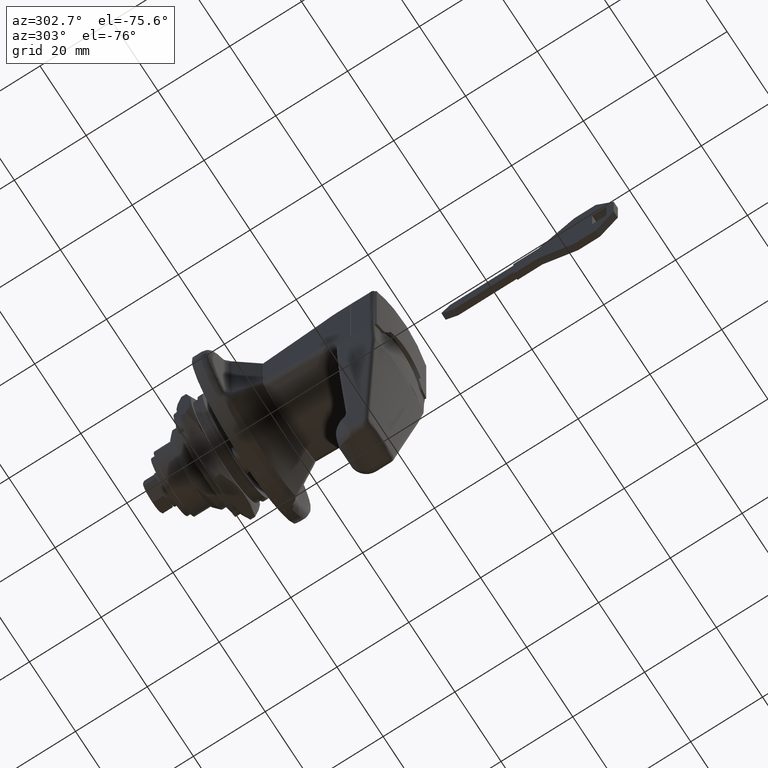
[diagram: clean part render]
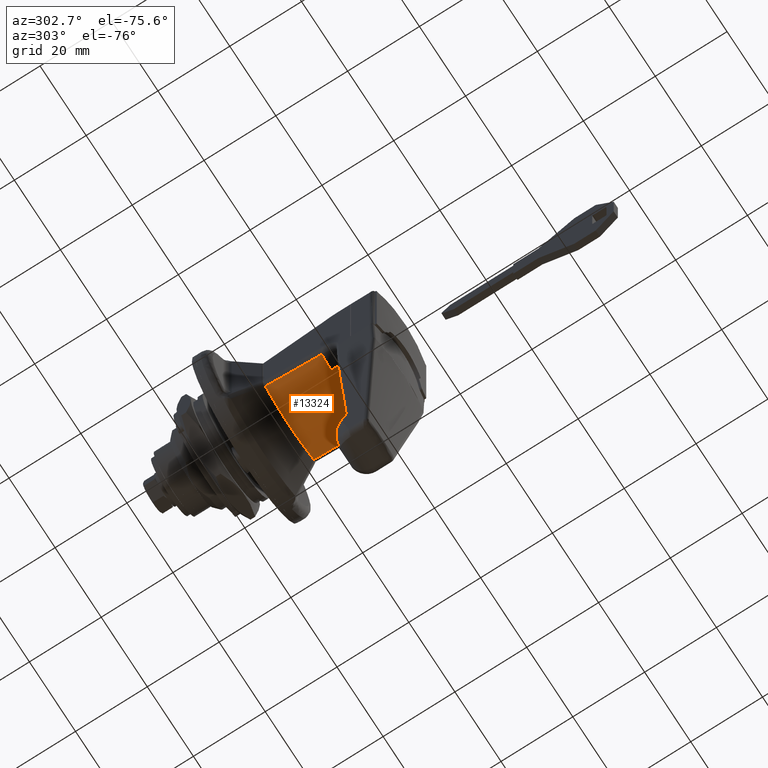
[diagram: same view with one face highlighted and labeled with its STEP entity id]
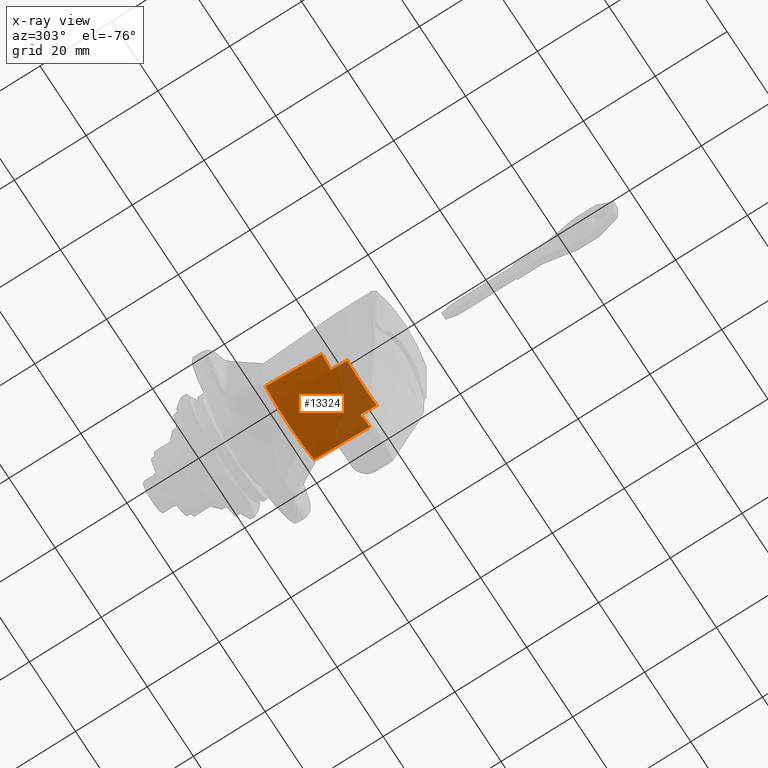
[diagram: x-ray of the same camera — body ghosted, the highlighted face saturated]
A machine part, auxiliary view. The second image highlights one B-rep face of the part: STEP entity #13324.
The next image is the same camera in x-ray: the body ghosted, the highlighted face saturated — about 26% of this face is hidden behind the body in this view.
In plain terms, the highlighted face is a freeform B-spline surface patch.
Its self-contained STEP definition (entity closure, byte-faithful):
#6979=CARTESIAN_POINT('',(-28.129862603614249,10.442400157029640,-12.346453327102640));
#6980=VERTEX_POINT('',#6979);
#7062=CARTESIAN_POINT('',(-12.500000000000000,10.546220663594280,-9.993446669665621));
#7063=VERTEX_POINT('',#7062);
#7086=CARTESIAN_POINT('',(-28.129862603614249,10.442400157029640,-12.346453327102640));
#7087=CARTESIAN_POINT('',(-22.917580153028560,10.473586753545220,-11.577482379801801));
#7088=CARTESIAN_POINT('',(-17.707249343014439,10.507821275774660,-10.795504496864750));
#7089=CARTESIAN_POINT('',(-12.500000000000000,10.546220663594280,-9.993446669665630));
#7090=QUASI_UNIFORM_CURVE('',3,(#7086,#7087,#7088,#7089),.UNSPECIFIED.,.F.,.U.);
#7091=EDGE_CURVE('',#6980,#7063,#7090,.T.);
#7144=CARTESIAN_POINT('',(-28.129862603614299,-10.442400157029640,-12.346453327102660));
#7145=VERTEX_POINT('',#7144);
#7159=CARTESIAN_POINT('',(-12.500000000000000,-10.546220663594280,-9.993446669665660));
#7160=VERTEX_POINT('',#7159);
#7161=CARTESIAN_POINT('',(-12.500000000000000,-10.546220663594280,-9.993446669665660));
#7162=CARTESIAN_POINT('',(-17.707244098952540,-10.507821314445509,-10.795503689136821));
#7163=CARTESIAN_POINT('',(-22.917583649220798,-10.473586732626480,-11.577482895597059));
#7164=CARTESIAN_POINT('',(-28.129862603614249,-10.442400157029640,-12.346453327102701));
#7165=QUASI_UNIFORM_CURVE('',3,(#7161,#7162,#7163,#7164),.UNSPECIFIED.,.F.,.U.);
#7166=EDGE_CURVE('',#7160,#7145,#7165,.T.);
#9945=CARTESIAN_POINT('',(-28.129862603614249,-6.417848602893420,-14.027130015473640));
#9946=VERTEX_POINT('',#9945);
#9947=CARTESIAN_POINT('',(-28.129862603614299,-10.442400157029640,-12.346453327102671));
#9948=CARTESIAN_POINT('',(-28.129862603614299,-8.513891653240080,-13.387380941188564));
#9949=CARTESIAN_POINT('',(-28.129862603614299,-6.417848602893434,-14.027130015473659));
#9957=(BOUNDED_CURVE()B_SPLINE_CURVE(2,(#9947,#9948,#9949),.UNSPECIFIED.,.F.,.U.)CURVE()GEOMETRIC_REPRESENTATION_ITEM()QUASI_UNIFORM_CURVE()RATIONAL_B_SPLINE_CURVE((1.0,0.995068392873709,1.0))REPRESENTATION_ITEM(''));
#9958=EDGE_CURVE('',#7145,#9946,#9957,.T.);
#10064=CARTESIAN_POINT('',(-28.129862603614249,6.417848602893369,-14.027130015473659));
#10065=VERTEX_POINT('',#10064);
#10066=CARTESIAN_POINT('',(-28.129862603614249,6.417848602893369,-14.027130015473659));
#10067=CARTESIAN_POINT('',(-28.129862603614253,8.513891653240064,-13.387380941188553));
#10068=CARTESIAN_POINT('',(-28.129862603614249,10.442400157029640,-12.346453327102640));
#10076=(BOUNDED_CURVE()B_SPLINE_CURVE(2,(#10066,#10067,#10068),.UNSPECIFIED.,.F.,.U.)CURVE()GEOMETRIC_REPRESENTATION_ITEM()QUASI_UNIFORM_CURVE()RATIONAL_B_SPLINE_CURVE((1.0,0.995068392873709,1.0))REPRESENTATION_ITEM(''));
#10077=EDGE_CURVE('',#10065,#6980,#10076,.T.);
#11160=CARTESIAN_POINT('',(-32.624235852724198,-6.433495325306279,-14.618483568802700));
#11161=VERTEX_POINT('',#11160);
#11274=CARTESIAN_POINT('',(-32.624235852724198,-6.433495325306279,-14.618483568802700));
#11275=CARTESIAN_POINT('',(-31.126100520599341,-6.428660660664676,-14.421437711051089));
#11276=CARTESIAN_POINT('',(-29.627975879370279,-6.423447284240066,-14.224321505066751));
#11277=CARTESIAN_POINT('',(-28.129862603614249,-6.417848602893406,-14.027130015473670));
#11278=QUASI_UNIFORM_CURVE('',3,(#11274,#11275,#11276,#11277),.UNSPECIFIED.,.F.,.U.);
#11279=EDGE_CURVE('',#11161,#9946,#11278,.T.);
#11765=CARTESIAN_POINT('',(-32.624235852724198,6.433495325306420,-14.618483568802640));
#11766=VERTEX_POINT('',#11765);
#11852=CARTESIAN_POINT('',(-28.129862603614249,6.417848602893387,-14.027130015473681));
#11853=CARTESIAN_POINT('',(-29.627975770288032,6.423447283832390,-14.224321490708640));
#11854=CARTESIAN_POINT('',(-31.126100412210569,6.428660660314873,-14.421437696795010));
#11855=CARTESIAN_POINT('',(-32.624235852724198,6.433495325306420,-14.618483568802640));
#11856=QUASI_UNIFORM_CURVE('',3,(#11852,#11853,#11854,#11855),.UNSPECIFIED.,.F.,.U.);
#11857=EDGE_CURVE('',#10065,#11766,#11856,.T.);
#12020=CARTESIAN_POINT('',(-32.624235852724233,6.433495325306424,-14.618483568802670));
#12021=CARTESIAN_POINT('',(-32.607213140593082,5.383572378563560,-14.928677304422591));
#12022=CARTESIAN_POINT('',(-32.593007670250060,4.321500568797993,-15.160137847859909));
#12023=CARTESIAN_POINT('',(-32.573578021962852,2.173741006973291,-15.470217001306240));
#12024=CARTESIAN_POINT('',(-32.568346178751099,1.088053853953791,-15.548839051129560));
#12025=CARTESIAN_POINT('',(-32.568381143274443,-0.147099800122615,-15.548303352561801));
#12026=CARTESIAN_POINT('',(-32.568466326490281,-0.284654372123998,-15.546998642206800));
#12027=CARTESIAN_POINT('',(-32.568799297656831,-0.559563507745784,-15.541893694826591));
#12028=CARTESIAN_POINT('',(-32.569541459167652,-0.971127089231110,-15.530509170272399));
#12029=CARTESIAN_POINT('',(-32.571000896456283,-1.380315374301790,-15.508059935244420));
#12030=CARTESIAN_POINT('',(-32.574838157364667,-2.195578336992318,-15.448656321974561));
#12031=CARTESIAN_POINT('',(-32.578623945438977,-2.734939657408528,-15.389733317390920));
#12032=CARTESIAN_POINT('',(-32.593246605684641,-4.340849698764976,-15.156232641093171));
#12033=CARTESIAN_POINT('',(-32.607403066111168,-5.395286561242807,-14.925216416081890));
#12034=CARTESIAN_POINT('',(-32.624235852724247,-6.433495325306283,-14.618483568802720));
#12035=B_SPLINE_CURVE_WITH_KNOTS('',3,(#12020,#12021,#12022,#12023,#12024,#12025,#12026,#12027,#12028,#12029,#12030,#12031,#12032,#12033,#12034),.UNSPECIFIED.,.F.,.U.,(4,2,2,2,1,2,2,4),(0.0,0.250000000000000,0.500000000000000,0.531250000000000,0.562500000000000,0.625000000000000,0.750000000000000,1.0),.UNSPECIFIED.);
#12036=EDGE_CURVE('',#11766,#11161,#12035,.T.);
#13188=CARTESIAN_POINT('',(-12.500000000000000,-10.546220663594280,-9.993446669665660));
#13189=CARTESIAN_POINT('',(-12.500000000000002,8.007484E-015,-16.538485615988751));
#13190=CARTESIAN_POINT('',(-12.500000000000000,10.546220663594280,-9.993446669665621));
#13198=(BOUNDED_CURVE()B_SPLINE_CURVE(2,(#13188,#13189,#13190),.UNSPECIFIED.,.F.,.U.)CURVE()GEOMETRIC_REPRESENTATION_ITEM()QUASI_UNIFORM_CURVE()RATIONAL_B_SPLINE_CURVE((1.0,0.849672333483290,1.0))REPRESENTATION_ITEM(''));
#13199=EDGE_CURVE('',#7160,#7063,#13198,.T.);
#13300=CARTESIAN_POINT('',(-11.996894103681891,-10.659952563152331,-9.846781136046769));
#13301=CARTESIAN_POINT('',(-33.139919396450253,-12.095545401995560,-12.115564061035331));
#13302=CARTESIAN_POINT('',(-11.996894103681893,0.490688623420966,-16.902449820628270));
#13303=CARTESIAN_POINT('',(-33.139919396450253,0.556770444114991,-20.121430917403096));
#13304=CARTESIAN_POINT('',(-11.996894103681891,11.342368506139399,-9.395099876653845));
#13305=CARTESIAN_POINT('',(-33.139919396450253,12.869863390049060,-11.603054164968579));
#13313=(BOUNDED_SURFACE()B_SPLINE_SURFACE(1,2,((#13300,#13302,#13304),(#13301,#13303,#13305)),.UNSPECIFIED.,.F.,.F.,.U.)B_SPLINE_SURFACE_WITH_KNOTS((2,2),(3,3),(0.0,21.312808855012520),(0.0,27.232522923884829),.UNSPECIFIED.)GEOMETRIC_REPRESENTATION_ITEM()RATIONAL_B_SPLINE_SURFACE(((1.0,0.833885822067168,1.0),(1.0,0.833885822067168,1.0)))REPRESENTATION_ITEM('')SURFACE());
#13314=ORIENTED_EDGE('',*,*,#13199,.F.);
#13315=ORIENTED_EDGE('',*,*,#7166,.T.);
#13316=ORIENTED_EDGE('',*,*,#9958,.T.);
#13317=ORIENTED_EDGE('',*,*,#11279,.F.);
#13318=ORIENTED_EDGE('',*,*,#12036,.F.);
#13319=ORIENTED_EDGE('',*,*,#11857,.F.);
#13320=ORIENTED_EDGE('',*,*,#10077,.T.);
#13321=ORIENTED_EDGE('',*,*,#7091,.T.);
#13322=EDGE_LOOP('',(#13314,#13315,#13316,#13317,#13318,#13319,#13320,#13321));
#13323=FACE_OUTER_BOUND('',#13322,.T.);
#13324=ADVANCED_FACE('',(#13323),#13313,.T.);